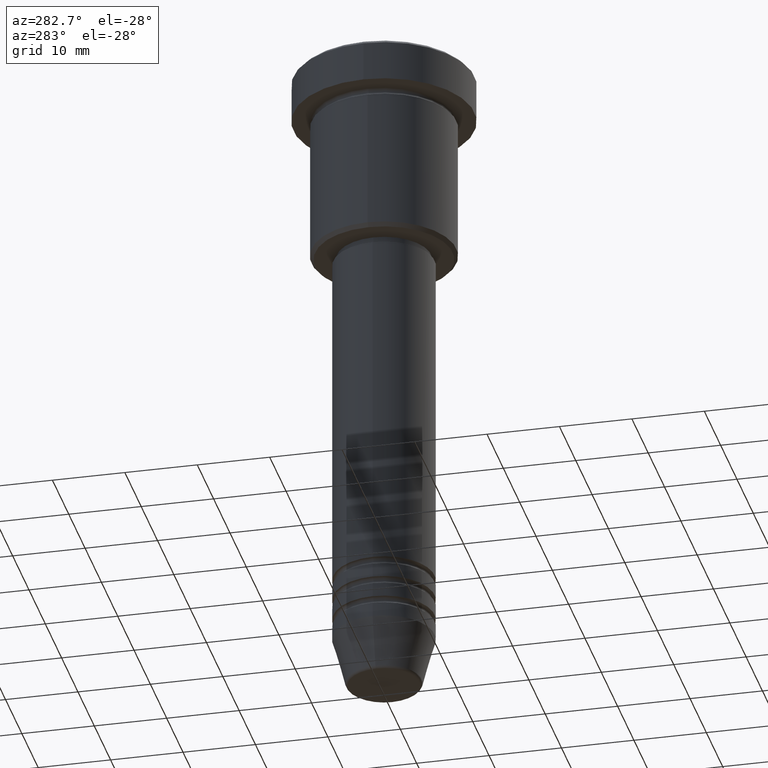
[diagram: clean part render]
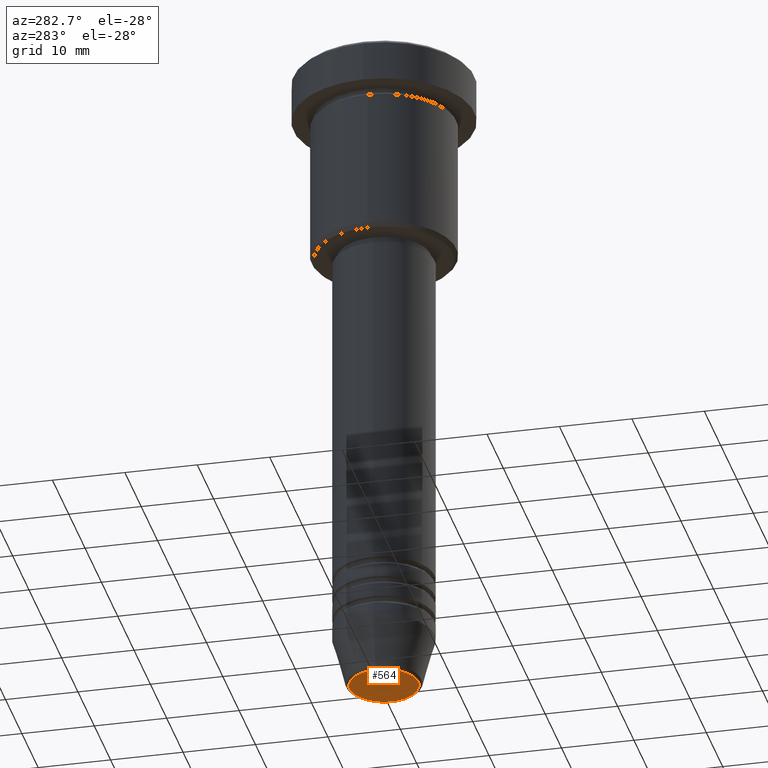
[diagram: same view with one face highlighted and labeled with its STEP entity id]
A machine part, auxiliary view. The second image highlights one B-rep face of the part: STEP entity #564.
In plain terms, the highlighted planar face has unit normal (0, -0, 1).
Its self-contained STEP definition (entity closure, byte-faithful):
#33 = EDGE_CURVE ( 'NONE', #839, #548, #512, .T. ) ;
#167 = FACE_OUTER_BOUND ( 'NONE', #880, .T. ) ;
#223 = DIRECTION ( 'NONE',  ( 0.000000000000000000, 0.000000000000000000, -1.000000000000000000 ) ) ;
#285 = ORIENTED_EDGE ( 'NONE', *, *, #33, .T. ) ;
#503 = DIRECTION ( 'NONE',  ( 0.000000000000000000, 0.000000000000000000, -1.000000000000000000 ) ) ;
#512 = CIRCLE ( 'NONE', #767, 4.740692158992654726 ) ;
#548 = VERTEX_POINT ( 'NONE', #638 ) ;
#564 = ADVANCED_FACE ( 'NONE', ( #167 ), #1170, .F. ) ;
#605 = DIRECTION ( 'NONE',  ( 1.000000000000000000, 0.000000000000000000, 0.000000000000000000 ) ) ;
#638 = CARTESIAN_POINT ( 'NONE',  ( 4.740692158992654726, 0.000000000000000000, -92.00000000000000000 ) ) ;
#689 = CARTESIAN_POINT ( 'NONE',  ( -4.740692158992654726, 6.101402971097975816E-16, -92.00000000000000000 ) ) ;
#705 = ORIENTED_EDGE ( 'NONE', *, *, #1163, .T. ) ;
#767 = AXIS2_PLACEMENT_3D ( 'NONE', #854, #503, #966 ) ;
#839 = VERTEX_POINT ( 'NONE', #689 ) ;
#854 = CARTESIAN_POINT ( 'NONE',  ( 0.000000000000000000, 0.000000000000000000, -92.00000000000000000 ) ) ;
#880 = EDGE_LOOP ( 'NONE', ( #705, #285 ) ) ;
#896 = CARTESIAN_POINT ( 'NONE',  ( 0.000000000000000000, 0.000000000000000000, -92.00000000000000000 ) ) ;
#908 = DIRECTION ( 'NONE',  ( 1.000000000000000000, 0.000000000000000000, 0.000000000000000000 ) ) ;
#926 = DIRECTION ( 'NONE',  ( 0.000000000000000000, -0.000000000000000000, 1.000000000000000000 ) ) ;
#957 = AXIS2_PLACEMENT_3D ( 'NONE', #896, #223, #605 ) ;
#966 = DIRECTION ( 'NONE',  ( 1.000000000000000000, 0.000000000000000000, 0.000000000000000000 ) ) ;
#1102 = CARTESIAN_POINT ( 'NONE',  ( 0.000000000000000000, 0.000000000000000000, -92.00000000000000000 ) ) ;
#1121 = CIRCLE ( 'NONE', #957, 4.740692158992654726 ) ;
#1163 = EDGE_CURVE ( 'NONE', #548, #839, #1121, .T. ) ;
#1170 = PLANE ( 'NONE',  #1177 ) ;
#1177 = AXIS2_PLACEMENT_3D ( 'NONE', #1102, #926, #908 ) ;